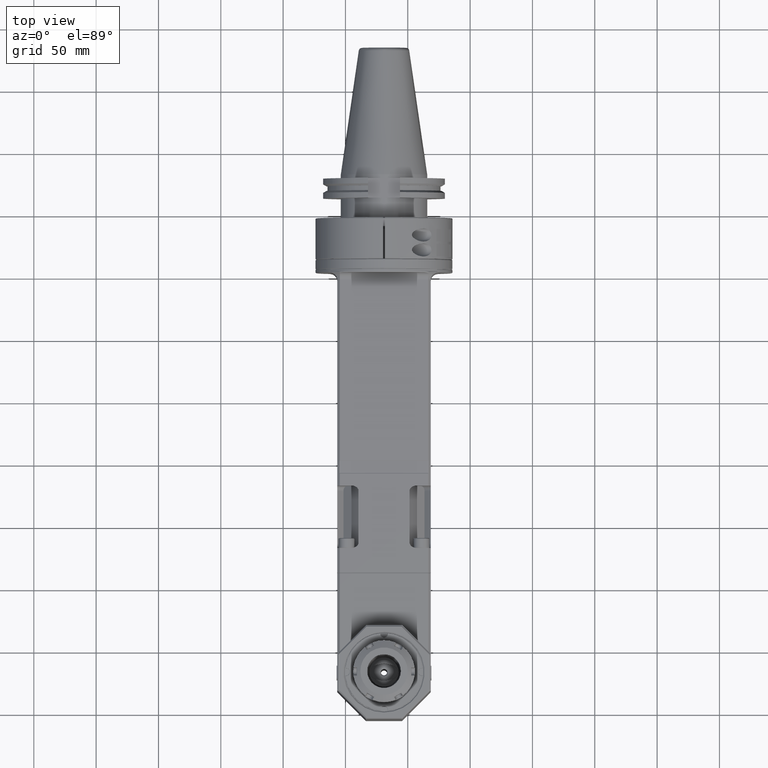
[diagram: clean part render]
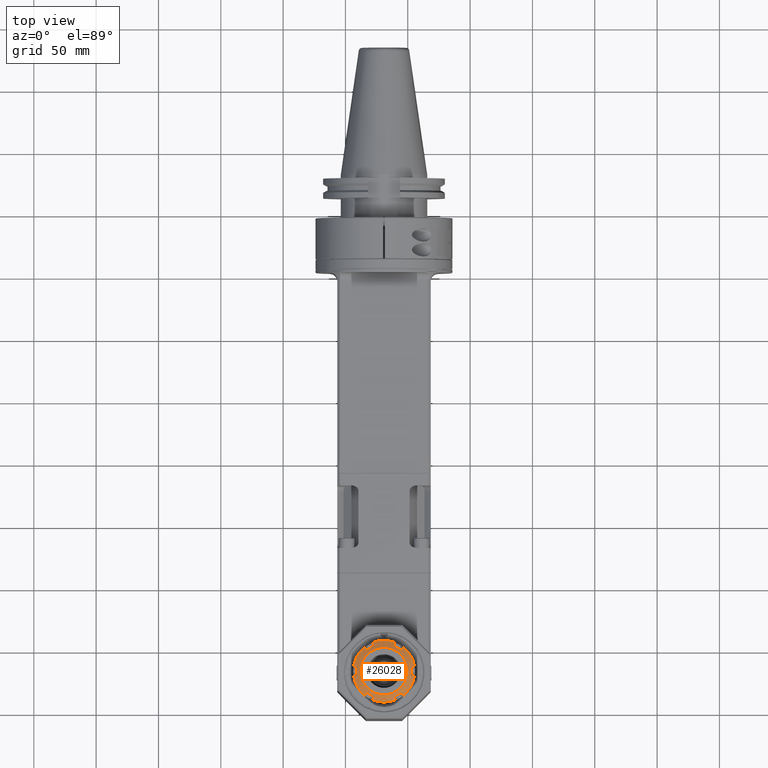
[diagram: same view with one face highlighted and labeled with its STEP entity id]
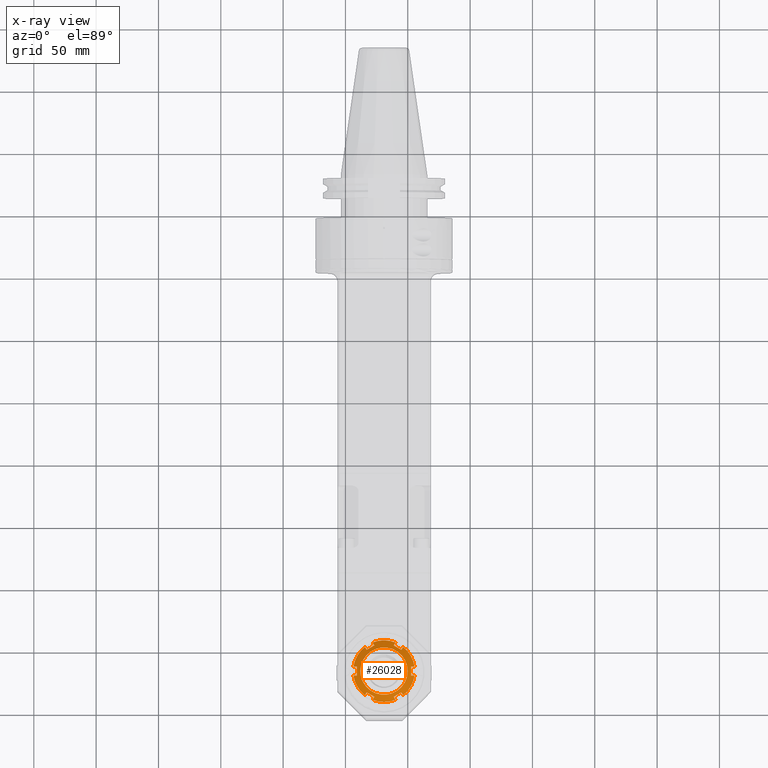
[diagram: x-ray of the same camera — body ghosted, the highlighted face saturated]
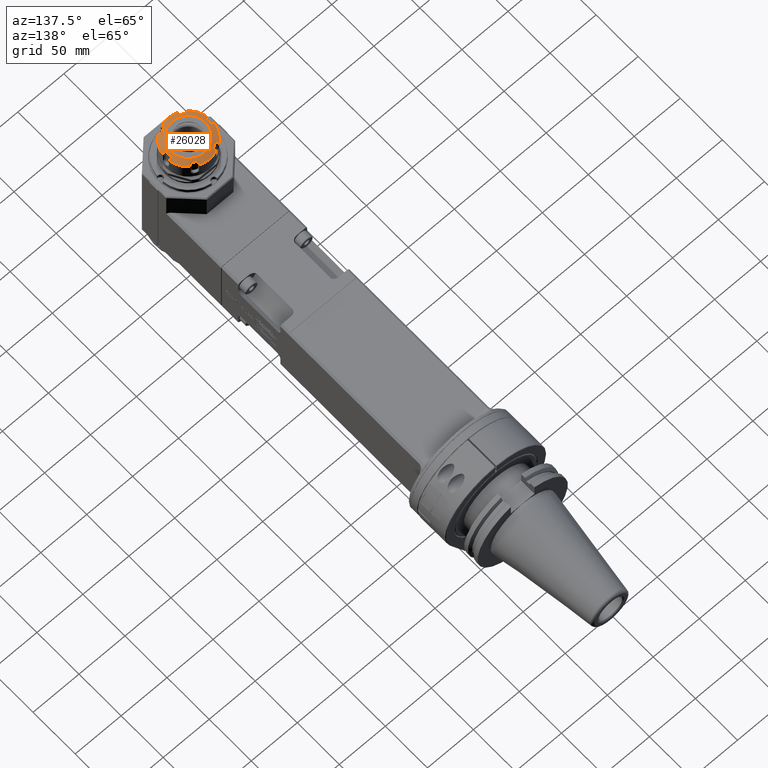
[diagram: same view with one face highlighted and labeled with its STEP entity id]
A machine part, top view. The second image highlights one B-rep face of the part: STEP entity #26028.
The next image is the same camera in x-ray: the body ghosted, the highlighted face saturated — about 0% of this face is hidden behind the body in this view.
A second angle (auxiliary view) of the same face is appended — the face is thin or edge-on in the first view.
In plain terms, the highlighted conical surface has half-angle 60 deg.
Its self-contained STEP definition (entity closure, byte-faithful):
#370=(
BOUNDED_CURVE()
B_SPLINE_CURVE(2,(#48498,#48499,#48500),.UNSPECIFIED.,.F.,.F.)
B_SPLINE_CURVE_WITH_KNOTS((3,3),(-1.82654082025612,-1.82066003770073),
 .UNSPECIFIED.)
CURVE()
GEOMETRIC_REPRESENTATION_ITEM()
RATIONAL_B_SPLINE_CURVE((1.10514898114866,1.10514190550806,1.10513378545429))
REPRESENTATION_ITEM('')
);
#371=(
BOUNDED_CURVE()
B_SPLINE_CURVE(2,(#48525,#48526,#48527),.UNSPECIFIED.,.F.,.F.)
B_SPLINE_CURVE_WITH_KNOTS((3,3),(1.82066009603085,1.82654082049497),
 .UNSPECIFIED.)
CURVE()
GEOMETRIC_REPRESENTATION_ITEM()
RATIONAL_B_SPLINE_CURVE((1.10513378565862,1.10514190562193,1.10514898119271))
REPRESENTATION_ITEM('')
);
#372=(
BOUNDED_CURVE()
B_SPLINE_CURVE(2,(#48529,#48530,#48531),.UNSPECIFIED.,.F.,.F.)
B_SPLINE_CURVE_WITH_KNOTS((3,3),(1.9062225038826,1.91210328642384),
 .UNSPECIFIED.)
CURVE()
GEOMETRIC_REPRESENTATION_ITEM()
RATIONAL_B_SPLINE_CURVE((1.10514898079851,1.10514190515848,1.10513378510529))
REPRESENTATION_ITEM('')
);
#373=(
BOUNDED_CURVE()
B_SPLINE_CURVE(2,(#48555,#48556,#48557),.UNSPECIFIED.,.F.,.F.)
B_SPLINE_CURVE_WITH_KNOTS((3,3),(1.82066003554206,1.82654081594496),
 .UNSPECIFIED.)
CURVE()
GEOMETRIC_REPRESENTATION_ITEM()
RATIONAL_B_SPLINE_CURVE((1.10513378467588,1.10514190472504,1.1051489803618))
REPRESENTATION_ITEM('')
);
#374=(
BOUNDED_CURVE()
B_SPLINE_CURVE(2,(#48559,#48560,#48561),.UNSPECIFIED.,.F.,.F.)
B_SPLINE_CURVE_WITH_KNOTS((3,3),(1.90622249083383,1.91210327337056),
 .UNSPECIFIED.)
CURVE()
GEOMETRIC_REPRESENTATION_ITEM()
RATIONAL_B_SPLINE_CURVE((1.1051489802524,1.10514190461325,1.10513378456093))
REPRESENTATION_ITEM('')
);
#375=(
BOUNDED_CURVE()
B_SPLINE_CURVE(2,(#48587,#48588,#48589),.UNSPECIFIED.,.F.,.F.)
B_SPLINE_CURVE_WITH_KNOTS((3,3),(1.8206600385524,1.82654081896553),
 .UNSPECIFIED.)
CURVE()
GEOMETRIC_REPRESENTATION_ITEM()
RATIONAL_B_SPLINE_CURVE((1.10513378522776,1.10514190527782,1.10514898091548))
REPRESENTATION_ITEM('')
);
#376=(
BOUNDED_CURVE()
B_SPLINE_CURVE(2,(#48618,#48619,#48620),.UNSPECIFIED.,.F.,.F.)
B_SPLINE_CURVE_WITH_KNOTS((3,3),(1.82066004007141,1.82654082049488),
 .UNSPECIFIED.)
CURVE()
GEOMETRIC_REPRESENTATION_ITEM()
RATIONAL_B_SPLINE_CURVE((1.1051337855041,1.10514190555462,1.10514898119273))
REPRESENTATION_ITEM('')
);
#377=(
BOUNDED_CURVE()
B_SPLINE_CURVE(2,(#48622,#48623,#48624),.UNSPECIFIED.,.F.,.F.)
B_SPLINE_CURVE_WITH_KNOTS((3,3),(1.90622250388284,1.91210328642407),
 .UNSPECIFIED.)
CURVE()
GEOMETRIC_REPRESENTATION_ITEM()
RATIONAL_B_SPLINE_CURVE((1.1051489807984,1.10514190515837,1.10513378510518))
REPRESENTATION_ITEM('')
);
#378=(
BOUNDED_CURVE()
B_SPLINE_CURVE(2,(#48648,#48649,#48650),.UNSPECIFIED.,.F.,.F.)
B_SPLINE_CURVE_WITH_KNOTS((3,3),(1.82066003554227,1.82654081594518),
 .UNSPECIFIED.)
CURVE()
GEOMETRIC_REPRESENTATION_ITEM()
RATIONAL_B_SPLINE_CURVE((1.10513378467585,1.10514190472501,1.10514898036177))
REPRESENTATION_ITEM('')
);
#379=(
BOUNDED_CURVE()
B_SPLINE_CURVE(2,(#48652,#48653,#48654),.UNSPECIFIED.,.F.,.F.)
B_SPLINE_CURVE_WITH_KNOTS((3,3),(1.90622249083385,1.91210327337054),
 .UNSPECIFIED.)
CURVE()
GEOMETRIC_REPRESENTATION_ITEM()
RATIONAL_B_SPLINE_CURVE((1.10514898025235,1.10514190461319,1.10513378456088))
REPRESENTATION_ITEM('')
);
#380=(
BOUNDED_CURVE()
B_SPLINE_CURVE(2,(#48680,#48681,#48682),.UNSPECIFIED.,.F.,.F.)
B_SPLINE_CURVE_WITH_KNOTS((3,3),(1.82066001947982,1.82654081896597),
 .UNSPECIFIED.)
CURVE()
GEOMETRIC_REPRESENTATION_ITEM()
RATIONAL_B_SPLINE_CURVE((1.10513378517518,1.10514190525496,1.10514898091556))
REPRESENTATION_ITEM('')
);
#381=(
BOUNDED_CURVE()
B_SPLINE_CURVE(2,(#48684,#48685,#48686),.UNSPECIFIED.,.F.,.F.)
B_SPLINE_CURVE_WITH_KNOTS((3,3),(-1.8265408202562,-1.82066003770081),
 .UNSPECIFIED.)
CURVE()
GEOMETRIC_REPRESENTATION_ITEM()
RATIONAL_B_SPLINE_CURVE((1.10514898114863,1.10514190550803,1.10513378545426))
REPRESENTATION_ITEM('')
);
#1109=B_SPLINE_CURVE_WITH_KNOTS('',3,(#48512,#48513,#48514,#48515,#48516,
#48517),.UNSPECIFIED.,.F.,.F.,(4,2,4),(1.00033050750309E-6,0.177019940716621,
0.354704537623583),.UNSPECIFIED.);
#1110=B_SPLINE_CURVE_WITH_KNOTS('',3,(#48519,#48520,#48521,#48522,#48523,
#48524),.UNSPECIFIED.,.F.,.F.,(4,2,4),(6.5778566744217E-6,0.158649001424634,
0.312349188626442),.UNSPECIFIED.);
#1111=B_SPLINE_CURVE_WITH_KNOTS('',3,(#48533,#48534,#48535,#48536,#48537,
#48538),.UNSPECIFIED.,.F.,.F.,(4,2,4),(9.99999991358948E-7,0.153548747194404,
0.311883058611838),.UNSPECIFIED.);
#1112=B_SPLINE_CURVE_WITH_KNOTS('',3,(#48540,#48541,#48542,#48543,#48544,
#48545,#48546,#48547),.UNSPECIFIED.,.F.,.F.,(4,2,2,4),(3.04413873223102E-6,
0.177740263340995,0.354676786395525,0.710274293113487),.UNSPECIFIED.);
#1113=B_SPLINE_CURVE_WITH_KNOTS('',3,(#48549,#48550,#48551,#48552,#48553,
#48554),.UNSPECIFIED.,.F.,.F.,(4,2,4),(1.32932843272184E-6,0.158570358433305,
0.312342936359742),.UNSPECIFIED.);
#1114=B_SPLINE_CURVE_WITH_KNOTS('',3,(#48563,#48564,#48565,#48566,#48567,
#48568),.UNSPECIFIED.,.F.,.F.,(4,2,4),(9.99999989675926E-7,0.153548725433397,
0.311884353206073),.UNSPECIFIED.);
#1115=B_SPLINE_CURVE_WITH_KNOTS('',3,(#48570,#48571,#48572,#48573,#48574,
#48575,#48576,#48577,#48578,#48579),.UNSPECIFIED.,.F.,.F.,(4,2,2,2,4),(3.43894120761927E-6,
0.179256817107897,0.356213165136703,0.532342427934041,0.709279107657914),
 .UNSPECIFIED.);
#1116=B_SPLINE_CURVE_WITH_KNOTS('',3,(#48581,#48582,#48583,#48584,#48585,
#48586),.UNSPECIFIED.,.F.,.F.,(4,2,4),(2.07933485628875E-6,0.158569246977761,
0.312342355096154),.UNSPECIFIED.);
#1117=B_SPLINE_CURVE_WITH_KNOTS('',3,(#48591,#48592,#48593,#48594,#48595,
#48596),.UNSPECIFIED.,.F.,.F.,(4,2,4),(9.99999986900368E-7,0.153549312260224,
0.311879056020401),.UNSPECIFIED.);
#1118=B_SPLINE_CURVE_WITH_KNOTS('',3,(#48598,#48599,#48600,#48601,#48602,
#48603),.UNSPECIFIED.,.F.,.F.,(4,2,4),(4.05464267821666E-6,0.17766895440524,
0.354666002549029),.UNSPECIFIED.);
#1119=B_SPLINE_CURVE_WITH_KNOTS('',3,(#48605,#48606,#48607,#48608,#48609,
#48610),.UNSPECIFIED.,.F.,.F.,(4,2,4),(1.00033051455172E-6,0.177019946599569,
0.354704559775911),.UNSPECIFIED.);
#1120=B_SPLINE_CURVE_WITH_KNOTS('',3,(#48612,#48613,#48614,#48615,#48616,
#48617),.UNSPECIFIED.,.F.,.F.,(4,2,4),(6.57690684396985E-6,0.158570187214575,
0.312342848772832),.UNSPECIFIED.);
#1121=B_SPLINE_CURVE_WITH_KNOTS('',3,(#48626,#48627,#48628,#48629,#48630,
#48631),.UNSPECIFIED.,.F.,.F.,(4,2,4),(9.99999985695937E-7,0.153548747176546,
0.311883058546277),.UNSPECIFIED.);
#1122=B_SPLINE_CURVE_WITH_KNOTS('',3,(#48633,#48634,#48635,#48636,#48637,
#48638,#48639,#48640),.UNSPECIFIED.,.F.,.F.,(4,2,2,4),(3.04413870792795E-6,
0.177740263341641,0.354676786396924,0.710274293117175),.UNSPECIFIED.);
#1123=B_SPLINE_CURVE_WITH_KNOTS('',3,(#48642,#48643,#48644,#48645,#48646,
#48647),.UNSPECIFIED.,.F.,.F.,(4,2,4),(1.32932839602228E-6,0.158570358433953,
0.312342936336019),.UNSPECIFIED.);
#1124=B_SPLINE_CURVE_WITH_KNOTS('',3,(#48656,#48657,#48658,#48659,#48660,
#48661),.UNSPECIFIED.,.F.,.F.,(4,2,4),(9.99999990970707E-7,0.153548725449949,
0.311884353226229),.UNSPECIFIED.);
#1125=B_SPLINE_CURVE_WITH_KNOTS('',3,(#48663,#48664,#48665,#48666,#48667,
#48668,#48669,#48670,#48671,#48672),.UNSPECIFIED.,.F.,.F.,(4,2,2,2,4),(3.43894121152143E-6,
0.179256816904015,0.356213164735294,0.532342426788511,0.709279115225004),
 .UNSPECIFIED.);
#1126=B_SPLINE_CURVE_WITH_KNOTS('',3,(#48674,#48675,#48676,#48677,#48678,
#48679),.UNSPECIFIED.,.F.,.F.,(4,2,4),(2.07504642756794E-6,0.158542178674182,
0.312340210569757),.UNSPECIFIED.);
#1127=B_SPLINE_CURVE_WITH_KNOTS('',3,(#48688,#48689,#48690,#48691,#48692,
#48693),.UNSPECIFIED.,.F.,.F.,(4,2,4),(9.99999986456279E-7,0.153548804591009,
0.311879056027456),.UNSPECIFIED.);
#1128=B_SPLINE_CURVE_WITH_KNOTS('',3,(#48694,#48695,#48696,#48697,#48698,
#48699),.UNSPECIFIED.,.F.,.F.,(4,2,4),(4.05464271295055E-6,0.177668954405957,
0.354666002550622),.UNSPECIFIED.);
#1355=CONICAL_SURFACE('',#28110,21.875,1.0471975511966);
#2744=LINE('',#48701,#4829);
#4829=VECTOR('',#33270,21.875);
#6971=FACE_OUTER_BOUND('',#8572,.T.);
#8572=EDGE_LOOP('',(#21381,#21382,#21383,#21384,#21385,#21386,#21387,#21388,
#21389,#21390,#21391,#21392,#21393,#21394,#21395,#21396,#21397,#21398,#21399,
#21400,#21401,#21402,#21403,#21404,#21405,#21406,#21407,#21408,#21409,#21410,
#21411,#21412,#21413,#21414,#21415,#21416,#21417,#21418,#21419,#21420,#21421));
#9661=CIRCLE('',#28103,24.75);
#9662=CIRCLE('',#28104,24.75);
#9663=CIRCLE('',#28105,24.75);
#9664=CIRCLE('',#28106,24.75);
#9665=CIRCLE('',#28107,24.75);
#9666=CIRCLE('',#28108,24.75);
#9667=CIRCLE('',#28111,19.);
#11693=VERTEX_POINT('',#48179);
#11694=VERTEX_POINT('',#48181);
#11697=VERTEX_POINT('',#48216);
#11698=VERTEX_POINT('',#48218);
#11701=VERTEX_POINT('',#48247);
#11702=VERTEX_POINT('',#48249);
#11706=VERTEX_POINT('',#48284);
#11707=VERTEX_POINT('',#48286);
#11710=VERTEX_POINT('',#48321);
#11711=VERTEX_POINT('',#48323);
#11714=VERTEX_POINT('',#48352);
#11715=VERTEX_POINT('',#48354);
#11720=VERTEX_POINT('',#48497);
#11722=VERTEX_POINT('',#48510);
#11723=VERTEX_POINT('',#48511);
#11724=VERTEX_POINT('',#48518);
#11725=VERTEX_POINT('',#48528);
#11726=VERTEX_POINT('',#48532);
#11727=VERTEX_POINT('',#48539);
#11728=VERTEX_POINT('',#48548);
#11729=VERTEX_POINT('',#48558);
#11730=VERTEX_POINT('',#48562);
#11731=VERTEX_POINT('',#48569);
#11732=VERTEX_POINT('',#48580);
#11733=VERTEX_POINT('',#48590);
#11734=VERTEX_POINT('',#48597);
#11735=VERTEX_POINT('',#48604);
#11736=VERTEX_POINT('',#48611);
#11737=VERTEX_POINT('',#48621);
#11738=VERTEX_POINT('',#48625);
#11739=VERTEX_POINT('',#48632);
#11740=VERTEX_POINT('',#48641);
#11741=VERTEX_POINT('',#48651);
#11742=VERTEX_POINT('',#48655);
#11743=VERTEX_POINT('',#48662);
#11744=VERTEX_POINT('',#48673);
#11745=VERTEX_POINT('',#48683);
#11746=VERTEX_POINT('',#48687);
#11747=VERTEX_POINT('',#48700);
#15081=EDGE_CURVE('',#11693,#11694,#9661,.T.);
#15085=EDGE_CURVE('',#11697,#11698,#9662,.T.);
#15089=EDGE_CURVE('',#11701,#11702,#9663,.T.);
#15095=EDGE_CURVE('',#11707,#11706,#9664,.T.);
#15099=EDGE_CURVE('',#11711,#11710,#9665,.T.);
#15103=EDGE_CURVE('',#11715,#11714,#9666,.T.);
#15111=EDGE_CURVE('',#11706,#11720,#370,.T.);
#15114=EDGE_CURVE('',#11722,#11723,#1109,.T.);
#15115=EDGE_CURVE('',#11723,#11724,#1110,.T.);
#15116=EDGE_CURVE('',#11724,#11715,#371,.T.);
#15117=EDGE_CURVE('',#11714,#11725,#372,.T.);
#15118=EDGE_CURVE('',#11725,#11726,#1111,.T.);
#15119=EDGE_CURVE('',#11726,#11727,#1112,.T.);
#15120=EDGE_CURVE('',#11727,#11728,#1113,.T.);
#15121=EDGE_CURVE('',#11728,#11711,#373,.T.);
#15122=EDGE_CURVE('',#11710,#11729,#374,.T.);
#15123=EDGE_CURVE('',#11729,#11730,#1114,.T.);
#15124=EDGE_CURVE('',#11730,#11731,#1115,.T.);
#15125=EDGE_CURVE('',#11731,#11732,#1116,.T.);
#15126=EDGE_CURVE('',#11732,#11707,#375,.T.);
#15127=EDGE_CURVE('',#11720,#11733,#1117,.T.);
#15128=EDGE_CURVE('',#11733,#11734,#1118,.T.);
#15129=EDGE_CURVE('',#11734,#11735,#1119,.T.);
#15130=EDGE_CURVE('',#11735,#11736,#1120,.T.);
#15131=EDGE_CURVE('',#11736,#11702,#376,.T.);
#15132=EDGE_CURVE('',#11701,#11737,#377,.T.);
#15133=EDGE_CURVE('',#11737,#11738,#1121,.T.);
#15134=EDGE_CURVE('',#11738,#11739,#1122,.T.);
#15135=EDGE_CURVE('',#11739,#11740,#1123,.T.);
#15136=EDGE_CURVE('',#11740,#11698,#378,.T.);
#15137=EDGE_CURVE('',#11697,#11741,#379,.T.);
#15138=EDGE_CURVE('',#11741,#11742,#1124,.T.);
#15139=EDGE_CURVE('',#11742,#11743,#1125,.T.);
#15140=EDGE_CURVE('',#11743,#11744,#1126,.T.);
#15141=EDGE_CURVE('',#11744,#11694,#380,.T.);
#15142=EDGE_CURVE('',#11693,#11745,#381,.T.);
#15143=EDGE_CURVE('',#11745,#11746,#1127,.T.);
#15144=EDGE_CURVE('',#11746,#11722,#1128,.T.);
#15145=EDGE_CURVE('',#11722,#11747,#2744,.T.);
#15146=EDGE_CURVE('',#11747,#11747,#9667,.T.);
#21381=ORIENTED_EDGE('',*,*,#15114,.T.);
#21382=ORIENTED_EDGE('',*,*,#15115,.T.);
#21383=ORIENTED_EDGE('',*,*,#15116,.T.);
#21384=ORIENTED_EDGE('',*,*,#15103,.T.);
#21385=ORIENTED_EDGE('',*,*,#15117,.T.);
#21386=ORIENTED_EDGE('',*,*,#15118,.T.);
#21387=ORIENTED_EDGE('',*,*,#15119,.T.);
#21388=ORIENTED_EDGE('',*,*,#15120,.T.);
#21389=ORIENTED_EDGE('',*,*,#15121,.T.);
#21390=ORIENTED_EDGE('',*,*,#15099,.T.);
#21391=ORIENTED_EDGE('',*,*,#15122,.T.);
#21392=ORIENTED_EDGE('',*,*,#15123,.T.);
#21393=ORIENTED_EDGE('',*,*,#15124,.T.);
#21394=ORIENTED_EDGE('',*,*,#15125,.T.);
#21395=ORIENTED_EDGE('',*,*,#15126,.T.);
#21396=ORIENTED_EDGE('',*,*,#15095,.T.);
#21397=ORIENTED_EDGE('',*,*,#15111,.T.);
#21398=ORIENTED_EDGE('',*,*,#15127,.T.);
#21399=ORIENTED_EDGE('',*,*,#15128,.T.);
#21400=ORIENTED_EDGE('',*,*,#15129,.T.);
#21401=ORIENTED_EDGE('',*,*,#15130,.T.);
#21402=ORIENTED_EDGE('',*,*,#15131,.T.);
#21403=ORIENTED_EDGE('',*,*,#15089,.F.);
#21404=ORIENTED_EDGE('',*,*,#15132,.T.);
#21405=ORIENTED_EDGE('',*,*,#15133,.T.);
#21406=ORIENTED_EDGE('',*,*,#15134,.T.);
#21407=ORIENTED_EDGE('',*,*,#15135,.T.);
#21408=ORIENTED_EDGE('',*,*,#15136,.T.);
#21409=ORIENTED_EDGE('',*,*,#15085,.F.);
#21410=ORIENTED_EDGE('',*,*,#15137,.T.);
#21411=ORIENTED_EDGE('',*,*,#15138,.T.);
#21412=ORIENTED_EDGE('',*,*,#15139,.T.);
#21413=ORIENTED_EDGE('',*,*,#15140,.T.);
#21414=ORIENTED_EDGE('',*,*,#15141,.T.);
#21415=ORIENTED_EDGE('',*,*,#15081,.F.);
#21416=ORIENTED_EDGE('',*,*,#15142,.T.);
#21417=ORIENTED_EDGE('',*,*,#15143,.T.);
#21418=ORIENTED_EDGE('',*,*,#15144,.T.);
#21419=ORIENTED_EDGE('',*,*,#15145,.T.);
#21420=ORIENTED_EDGE('',*,*,#15146,.F.);
#21421=ORIENTED_EDGE('',*,*,#15145,.F.);
#26028=ADVANCED_FACE('',(#6971),#1355,.T.);
#28103=AXIS2_PLACEMENT_3D('',#48182,#33238,#33239);
#28104=AXIS2_PLACEMENT_3D('',#48219,#33242,#33243);
#28105=AXIS2_PLACEMENT_3D('',#48250,#33246,#33247);
#28106=AXIS2_PLACEMENT_3D('',#48287,#33251,#33252);
#28107=AXIS2_PLACEMENT_3D('',#48324,#33255,#33256);
#28108=AXIS2_PLACEMENT_3D('',#48355,#33259,#33260);
#28110=AXIS2_PLACEMENT_3D('',#48509,#33268,#33269);
#28111=AXIS2_PLACEMENT_3D('',#48702,#33271,#33272);
#33238=DIRECTION('center_axis',(0.,0.,-1.));
#33239=DIRECTION('ref_axis',(-0.989529626064201,0.1443298969072,0.));
#33242=DIRECTION('center_axis',(0.,0.,-1.));
#33243=DIRECTION('ref_axis',(-0.369771455784902,0.929122742422504,0.));
#33246=DIRECTION('center_axis',(0.,0.,-1.));
#33247=DIRECTION('ref_axis',(0.619758170279316,0.784792845515321,0.));
#33251=DIRECTION('center_axis',(0.,0.,1.));
#33252=DIRECTION('ref_axis',(0.619758170279316,-0.784792845515321,0.));
#33255=DIRECTION('center_axis',(0.,0.,1.));
#33256=DIRECTION('ref_axis',(-0.369771455784902,-0.929122742422504,0.));
#33259=DIRECTION('center_axis',(0.,0.,1.));
#33260=DIRECTION('ref_axis',(-0.989529626064201,-0.1443298969072,0.));
#33268=DIRECTION('center_axis',(0.,0.,-1.));
#33269=DIRECTION('ref_axis',(1.,0.,0.));
#33270=DIRECTION('',(0.866025403784439,-1.06057523872491E-16,0.5));
#33271=DIRECTION('center_axis',(0.,0.,1.));
#33272=DIRECTION('ref_axis',(-1.,0.,0.));
#48179=CARTESIAN_POINT('',(-24.49085824509,-328.4278350515,100.1802359522));
#48181=CARTESIAN_POINT('',(-15.33901471441,-312.5763770735,100.1802359522));
#48182=CARTESIAN_POINT('Origin',(1.309955564164E-13,-332.,100.1802359522));
#48216=CARTESIAN_POINT('',(-9.151843530675,-309.004212125,100.1802359522));
#48218=CARTESIAN_POINT('',(9.151843530675,-309.004212125,100.1802359522));
#48219=CARTESIAN_POINT('Origin',(1.309955564164E-13,-332.,100.1802359522));
#48247=CARTESIAN_POINT('',(15.33901471441,-312.5763770735,100.1802359522));
#48249=CARTESIAN_POINT('',(24.49085824509,-328.4278350515,100.1802359522));
#48250=CARTESIAN_POINT('Origin',(1.309955564164E-13,-332.,100.1802359522));
#48284=CARTESIAN_POINT('',(24.49085824509,-335.5721649485,100.1802359522));
#48286=CARTESIAN_POINT('',(15.33901471441,-351.4236229265,100.1802359522));
#48287=CARTESIAN_POINT('Origin',(1.309955564164E-13,-332.,100.1802359522));
#48321=CARTESIAN_POINT('',(9.151843530675,-354.995787875,100.1802359522));
#48323=CARTESIAN_POINT('',(-9.151843530675,-354.995787875,100.1802359522));
#48324=CARTESIAN_POINT('Origin',(1.309955564164E-13,-332.,100.1802359522));
#48352=CARTESIAN_POINT('',(-15.33901471441,-351.4236229265,100.1802359522));
#48354=CARTESIAN_POINT('',(-24.49085824509,-335.5721649485,100.1802359522));
#48355=CARTESIAN_POINT('Origin',(1.309955564164E-13,-332.,100.1802359522));
#48497=CARTESIAN_POINT('',(24.4594052314,-335.5357914807,100.2012246278));
#48498=CARTESIAN_POINT('Ctrl Pts',(24.4908582450971,-335.572164948478,100.180235952173));
#48499=CARTESIAN_POINT('Ctrl Pts',(24.4751201799998,-335.553964848213,100.190743784961));
#48500=CARTESIAN_POINT('Ctrl Pts',(24.4594052313875,-335.535791480734,100.20122462784));
#48509=CARTESIAN_POINT('Origin',(1.333912474299E-13,-332.,101.8401179761));
#48510=CARTESIAN_POINT('',(-21.7499808090266,-331.999999999757,101.91229348921));
#48511=CARTESIAN_POINT('',(-21.7467883487198,-335.540152052563,101.748865306802));
#48512=CARTESIAN_POINT('Ctrl Pts',(-21.7499691532631,-331.999999998814,
101.91230456912));
#48513=CARTESIAN_POINT('Ctrl Pts',(-21.7498843188799,-332.590063114272,
101.912353548293));
#48514=CARTESIAN_POINT('Ctrl Pts',(-21.7496381453091,-333.179151326333,
101.898630296402));
#48515=CARTESIAN_POINT('Ctrl Pts',(-21.7486241347857,-334.360174166036,
101.843949712118));
#48516=CARTESIAN_POINT('Ctrl Pts',(-21.7478499128928,-334.950417064916,
101.802967447971));
#48517=CARTESIAN_POINT('Ctrl Pts',(-21.7467883497789,-335.540152052468,
101.748865305749));
#48518=CARTESIAN_POINT('',(-24.45940554186,-335.5357918398,100.2012244208));
#48519=CARTESIAN_POINT('Ctrl Pts',(-21.7467883485518,-335.54015205181,101.748865306509));
#48520=CARTESIAN_POINT('Ctrl Pts',(-22.2062689713931,-335.539314281344,
101.487108445731));
#48521=CARTESIAN_POINT('Ctrl Pts',(-22.6658663388508,-335.538539699259,
101.225060788196));
#48522=CARTESIAN_POINT('Ctrl Pts',(-23.5700194846934,-335.537105917963,
100.709176497805));
#48523=CARTESIAN_POINT('Ctrl Pts',(-24.0152268369934,-335.53644286095,100.454979147629));
#48524=CARTESIAN_POINT('Ctrl Pts',(-24.4594055418501,-335.535791839753,
100.201224420783));
#48525=CARTESIAN_POINT('Ctrl Pts',(-24.4594055418548,-335.535791839791,
100.201224420777));
#48526=CARTESIAN_POINT('Ctrl Pts',(-24.4751203354571,-335.55396502801,100.190743681165));
#48527=CARTESIAN_POINT('Ctrl Pts',(-24.4908582450879,-335.572164948489,
100.180235952177));
#48528=CARTESIAN_POINT('',(-15.2917878605,-351.4145705515,100.2012246278));
#48529=CARTESIAN_POINT('Ctrl Pts',(-15.3390147144066,-351.42362292649,100.180235952188));
#48530=CARTESIAN_POINT('Ctrl Pts',(-15.3153839327048,-351.419093412448,
100.190743784963));
#48531=CARTESIAN_POINT('Ctrl Pts',(-15.2917878605182,-351.414570551476,
100.20122462783));
#48532=CARTESIAN_POINT('',(-13.9392386496319,-349.063164756013,101.748885148542));
#48533=CARTESIAN_POINT('Ctrl Pts',(-15.2917878605645,-351.414570551473,
100.201224627815));
#48534=CARTESIAN_POINT('Ctrl Pts',(-15.0701440261038,-351.029369877775,
100.455114644268));
#48535=CARTESIAN_POINT('Ctrl Pts',(-14.848000086099,-350.643277943395,100.7094432355));
#48536=CARTESIAN_POINT('Ctrl Pts',(-14.3971707220579,-349.85955000513,101.225321331072));
#48537=CARTESIAN_POINT('Ctrl Pts',(-14.1681432367903,-349.461313850265,
101.487254253987));
#48538=CARTESIAN_POINT('Ctrl Pts',(-13.9392386489504,-349.063164756227,
101.748885148271));
#48539=CARTESIAN_POINT('',(-7.80750911433231,-352.603307178742,101.748891703209));
#48540=CARTESIAN_POINT('Ctrl Pts',(-13.9392386500464,-349.063164756907,
101.748885147567));
#48541=CARTESIAN_POINT('Ctrl Pts',(-13.4288340963575,-349.359076253886,
101.803008293175));
#48542=CARTESIAN_POINT('Ctrl Pts',(-12.9179057249731,-349.654995194555,
101.843978615322));
#48543=CARTESIAN_POINT('Ctrl Pts',(-11.8956709105711,-350.246442529612,
101.89859366998));
#48544=CARTESIAN_POINT('Ctrl Pts',(-11.3864658609649,-350.540794251318,
101.912249632253));
#48545=CARTESIAN_POINT('Ctrl Pts',(-9.85026829471907,-351.427740132925,
101.912295231412));
#48546=CARTESIAN_POINT('Ctrl Pts',(-8.83152617246465,-352.014497099158,
101.8572817505));
#48547=CARTESIAN_POINT('Ctrl Pts',(-7.80750911371054,-352.603307177858,
101.748891704279));
#48548=CARTESIAN_POINT('',(-9.167617365192,-354.9503620487,100.2012246202));
#48549=CARTESIAN_POINT('Ctrl Pts',(-7.80750911375496,-352.603307179273,
101.748891703506));
#48550=CARTESIAN_POINT('Ctrl Pts',(-8.0378675300578,-353.000625036429,101.487256795526));
#48551=CARTESIAN_POINT('Ctrl Pts',(-8.26823968407483,-353.39809254496,101.225320063484));
#48552=CARTESIAN_POINT('Ctrl Pts',(-8.72155510405971,-354.180389448785,
100.709439837338));
#48553=CARTESIAN_POINT('Ctrl Pts',(-8.94484831851875,-354.565817284243,
100.455111524672));
#48554=CARTESIAN_POINT('Ctrl Pts',(-9.16761736522865,-354.950362048689,
100.201224620216));
#48555=CARTESIAN_POINT('Ctrl Pts',(-9.16761736518064,-354.950362048705,
100.201224620218));
#48556=CARTESIAN_POINT('Ctrl Pts',(-9.15973624443708,-354.973058268928,
100.190743781137));
#48557=CARTESIAN_POINT('Ctrl Pts',(-9.15184353067163,-354.995787874983,
100.180235952167));
#48558=CARTESIAN_POINT('',(9.1676173709,-354.9503620322,100.2012246278));
#48559=CARTESIAN_POINT('Ctrl Pts',(9.15184353065261,-354.99578787498,100.180235952173));
#48560=CARTESIAN_POINT('Ctrl Pts',(9.1597362472849,-354.973058260668,100.19074378496));
#48561=CARTESIAN_POINT('Ctrl Pts',(9.16761737088687,-354.950362032213,100.201224627838));
#48562=CARTESIAN_POINT('',(7.80750918199172,-352.603307425937,101.748891555927));
#48563=CARTESIAN_POINT('Ctrl Pts',(9.16761737085576,-354.950362032244,100.201224627828));
#48564=CARTESIAN_POINT('Ctrl Pts',(8.94484575065773,-354.565812558671,100.455114608298));
#48565=CARTESIAN_POINT('Ctrl Pts',(8.72155232777174,-354.180384348704,100.70944316486));
#48566=CARTESIAN_POINT('Ctrl Pts',(8.26823682169214,-353.398087446401,101.225323404464));
#48567=CARTESIAN_POINT('Ctrl Pts',(8.03786602827465,-353.000622455379,101.487258496293));
#48568=CARTESIAN_POINT('Ctrl Pts',(7.80750918143673,-352.603307426447,101.748891556213));
#48569=CARTESIAN_POINT('',(13.9392386272624,-349.06316484832,101.748885115447));
#48570=CARTESIAN_POINT('Ctrl Pts',(7.807509181394,-352.603307425087,101.748891556956));
#48571=CARTESIAN_POINT('Ctrl Pts',(8.32332850835943,-352.306711558073,101.803489739118));
#48572=CARTESIAN_POINT('Ctrl Pts',(8.8389795477757,-352.009927468879,101.844670619681));
#48573=CARTESIAN_POINT('Ctrl Pts',(9.86680529848839,-351.417831291293,101.899041518989));
#48574=CARTESIAN_POINT('Ctrl Pts',(10.3771123938342,-351.123564139912,101.912489025669));
#48575=CARTESIAN_POINT('Ctrl Pts',(11.3963400700405,-350.535087520421,101.912036252142));
#48576=CARTESIAN_POINT('Ctrl Pts',(11.9035616973107,-350.241879297636,101.898275512951));
#48577=CARTESIAN_POINT('Ctrl Pts',(12.9218291333137,-349.65272306623,101.843663811363));
#48578=CARTESIAN_POINT('Ctrl Pts',(13.4307949390711,-349.357939612796,101.802800286785));
#48579=CARTESIAN_POINT('Ctrl Pts',(13.9392386276832,-349.063164849227,101.748885114457));
#48580=CARTESIAN_POINT('',(15.29178787759,-351.4145705548,100.2012246202));
#48581=CARTESIAN_POINT('Ctrl Pts',(13.9392386265702,-349.063164848537,101.748885115172));
#48582=CARTESIAN_POINT('Ctrl Pts',(14.1681448240444,-349.461316620221,101.48725243557));
#48583=CARTESIAN_POINT('Ctrl Pts',(14.3971737495934,-349.859555108502,101.225317940596));
#48584=CARTESIAN_POINT('Ctrl Pts',(14.8480045576964,-350.643285406192,100.709438256846));
#48585=CARTESIAN_POINT('Ctrl Pts',(15.0701453974211,-351.029371966541,100.45511320699));
#48586=CARTESIAN_POINT('Ctrl Pts',(15.2917878775777,-351.41457055482,100.201224620219));
#48587=CARTESIAN_POINT('Ctrl Pts',(15.2917878776271,-351.414570554717,100.201224620248));
#48588=CARTESIAN_POINT('Ctrl Pts',(15.3153839412778,-351.419093414054,100.190743781168));
#48589=CARTESIAN_POINT('Ctrl Pts',(15.3390147144186,-351.423622926455,100.1802359522));
#48590=CARTESIAN_POINT('',(21.7467883116766,-335.540152338497,101.748865301385));
#48591=CARTESIAN_POINT('Ctrl Pts',(24.4594052314138,-335.535791480749,100.201224627824));
#48592=CARTESIAN_POINT('Ctrl Pts',(24.0149866972508,-335.536442630905,100.455116385536));
#48593=CARTESIAN_POINT('Ctrl Pts',(23.5695549122634,-335.537106294172,100.709441774731));
#48594=CARTESIAN_POINT('Ctrl Pts',(22.6654206210709,-335.538540567528,101.225314908903));
#48595=CARTESIAN_POINT('Ctrl Pts',(22.2060360582774,-335.539315003473,101.487241104614));
#48596=CARTESIAN_POINT('Ctrl Pts',(21.746788311509,-335.540152337746,101.748865301093));
#48597=CARTESIAN_POINT('',(21.7499773944747,-331.999999999365,101.912296910753));
#48598=CARTESIAN_POINT('Ctrl Pts',(21.7467883127329,-335.540152338402,101.748865300335));
#48599=CARTESIAN_POINT('Ctrl Pts',(21.7478496279381,-334.95041347737,101.802967947549));
#48600=CARTESIAN_POINT('Ctrl Pts',(21.74862352475,-334.360166871518,101.84395057848));
#48601=CARTESIAN_POINT('Ctrl Pts',(21.7496377384096,-333.179143734191,101.898630712485));
#48602=CARTESIAN_POINT('Ctrl Pts',(21.749884446748,-332.590059471359,101.912353474485));
#48603=CARTESIAN_POINT('Ctrl Pts',(21.7499705653701,-331.999999997792,101.91230375384));
#48604=CARTESIAN_POINT('',(21.7467883483242,-328.459847726967,101.748865286575));
#48605=CARTESIAN_POINT('Ctrl Pts',(21.749969153263,-332.000000001186,101.912304569121));
#48606=CARTESIAN_POINT('Ctrl Pts',(21.749884318877,-331.409936866118,101.912353548295));
#48607=CARTESIAN_POINT('Ctrl Pts',(21.7496381452924,-330.820848634541,101.89863029549));
#48608=CARTESIAN_POINT('Ctrl Pts',(21.7486241346717,-329.639825721173,101.843949705993));
#48609=CARTESIAN_POINT('Ctrl Pts',(21.7478499126619,-329.049582768432,101.802967435964));
#48610=CARTESIAN_POINT('Ctrl Pts',(21.7467883493819,-328.459847727062,101.748865285523));
#48611=CARTESIAN_POINT('',(24.45940524278,-328.4642085061,100.2012246202));
#48612=CARTESIAN_POINT('Ctrl Pts',(21.7467883481564,-328.459847727719,101.748865286282));
#48613=CARTESIAN_POINT('Ctrl Pts',(22.206039228323,-328.460685006862,101.487239298988));
#48614=CARTESIAN_POINT('Ctrl Pts',(22.6654265562078,-328.4614593622,101.22531151744));
#48615=CARTESIAN_POINT('Ctrl Pts',(23.569557804763,-328.462893555518,100.709440108973));
#48616=CARTESIAN_POINT('Ctrl Pts',(24.01499494653,-328.463557234394,100.455111660666));
#48617=CARTESIAN_POINT('Ctrl Pts',(24.4594052427995,-328.464208506127,100.201224620234));
#48618=CARTESIAN_POINT('Ctrl Pts',(24.4594052427774,-328.464208506073,100.201224620242));
#48619=CARTESIAN_POINT('Ctrl Pts',(24.4751201856985,-328.446035145176,100.190743781154));
#48620=CARTESIAN_POINT('Ctrl Pts',(24.490858245088,-328.427835051511,100.180235952178));
#48621=CARTESIAN_POINT('',(15.2917878605,-312.5854294485,100.2012246278));
#48622=CARTESIAN_POINT('Ctrl Pts',(15.3390147144072,-312.576377073511,100.180235952189));
#48623=CARTESIAN_POINT('Ctrl Pts',(15.3153839327053,-312.580906587553,100.190743784964));
#48624=CARTESIAN_POINT('Ctrl Pts',(15.2917878605187,-312.585429448526,100.201224627831));
#48625=CARTESIAN_POINT('',(13.939238649632,-314.936835243987,101.748885148542));
#48626=CARTESIAN_POINT('Ctrl Pts',(15.2917878605646,-312.585429448527,100.201224627815));
#48627=CARTESIAN_POINT('Ctrl Pts',(15.0701440261297,-312.97063012218,100.455114644238));
#48628=CARTESIAN_POINT('Ctrl Pts',(14.8480000861105,-313.356722056585,100.709443235487));
#48629=CARTESIAN_POINT('Ctrl Pts',(14.3971707220887,-314.140449994817,101.225321331037));
#48630=CARTESIAN_POINT('Ctrl Pts',(14.1681432367958,-314.538686149726,101.48725425398));
#48631=CARTESIAN_POINT('Ctrl Pts',(13.9392386489504,-314.936835243773,101.748885148271));
#48632=CARTESIAN_POINT('',(7.80750911433309,-311.396692821258,101.748891703209));
#48633=CARTESIAN_POINT('Ctrl Pts',(13.9392386500465,-314.936835243093,101.748885147567));
#48634=CARTESIAN_POINT('Ctrl Pts',(13.4288340963557,-314.640923746113,101.803008293175));
#48635=CARTESIAN_POINT('Ctrl Pts',(12.9179057249722,-314.345004805444,101.843978615322));
#48636=CARTESIAN_POINT('Ctrl Pts',(11.8956709105717,-313.753557470388,101.89859366998));
#48637=CARTESIAN_POINT('Ctrl Pts',(11.3864658609651,-313.459205748682,101.912249632253));
#48638=CARTESIAN_POINT('Ctrl Pts',(9.85026829471666,-312.572259867074,101.912295231412));
#48639=CARTESIAN_POINT('Ctrl Pts',(8.83152617246355,-311.98550290084,101.8572817505));
#48640=CARTESIAN_POINT('Ctrl Pts',(7.80750911371126,-311.396692822143,101.748891704279));
#48641=CARTESIAN_POINT('',(9.167617365192,-309.0496379513,100.2012246202));
#48642=CARTESIAN_POINT('Ctrl Pts',(7.80750911375573,-311.396692820728,101.748891703506));
#48643=CARTESIAN_POINT('Ctrl Pts',(8.03786753005861,-310.999374963569,101.487256795525));
#48644=CARTESIAN_POINT('Ctrl Pts',(8.26823968404596,-310.60190745509,101.225320063516));
#48645=CARTESIAN_POINT('Ctrl Pts',(8.72155510405141,-309.81961055123,100.709439837348));
#48646=CARTESIAN_POINT('Ctrl Pts',(8.94484831849656,-309.434182715795,100.455111524698));
#48647=CARTESIAN_POINT('Ctrl Pts',(9.16761736522948,-309.049637951311,100.201224620216));
#48648=CARTESIAN_POINT('Ctrl Pts',(9.16761736518159,-309.049637951295,100.201224620218));
#48649=CARTESIAN_POINT('Ctrl Pts',(9.15973624443803,-309.026941731072,100.190743781137));
#48650=CARTESIAN_POINT('Ctrl Pts',(9.15184353067257,-309.004212125016,100.180235952166));
#48651=CARTESIAN_POINT('',(-9.167617370899,-309.0496379678,100.2012246278));
#48652=CARTESIAN_POINT('Ctrl Pts',(-9.15184353065265,-309.00421212502,100.180235952173));
#48653=CARTESIAN_POINT('Ctrl Pts',(-9.15973624728489,-309.026941739332,
100.190743784959));
#48654=CARTESIAN_POINT('Ctrl Pts',(-9.16761737088682,-309.049637967787,
100.201224627838));
#48655=CARTESIAN_POINT('',(-7.8075091819918,-311.396692574063,101.748891555927));
#48656=CARTESIAN_POINT('Ctrl Pts',(-9.16761737085559,-309.049637967756,
100.201224627828));
#48657=CARTESIAN_POINT('Ctrl Pts',(-8.94484575063352,-309.434187441371,
100.455114608325));
#48658=CARTESIAN_POINT('Ctrl Pts',(-8.7215523277619,-309.819615651313,100.709443164871));
#48659=CARTESIAN_POINT('Ctrl Pts',(-8.26823682172155,-310.601912553548,
101.225323404431));
#48660=CARTESIAN_POINT('Ctrl Pts',(-8.03786602828537,-310.999377544602,
101.487258496281));
#48661=CARTESIAN_POINT('Ctrl Pts',(-7.8075091814368,-311.396692573553,101.748891556213));
#48662=CARTESIAN_POINT('',(-13.9392386924622,-314.936835189477,101.74888510853));
#48663=CARTESIAN_POINT('Ctrl Pts',(-7.80750918139403,-311.396692574913,
101.748891556956));
#48664=CARTESIAN_POINT('Ctrl Pts',(-8.32332850777283,-311.693288441589,
101.803489739056));
#48665=CARTESIAN_POINT('Ctrl Pts',(-8.83897954660163,-311.990072530446,
101.844670619587));
#48666=CARTESIAN_POINT('Ctrl Pts',(-9.86680529614904,-312.58216870736,101.899041518897));
#48667=CARTESIAN_POINT('Ctrl Pts',(-10.3771123909143,-312.876435858404,
101.912489025608));
#48668=CARTESIAN_POINT('Ctrl Pts',(-11.3963400643838,-313.464912476312,
101.912036252207));
#48669=CARTESIAN_POINT('Ctrl Pts',(-11.9035616895151,-313.758120697857,
101.898275513193));
#48670=CARTESIAN_POINT('Ctrl Pts',(-12.9218291485066,-314.347276942557,
101.843663810724));
#48671=CARTESIAN_POINT('Ctrl Pts',(-13.4307949792691,-314.642060410484,
101.802800283643));
#48672=CARTESIAN_POINT('Ctrl Pts',(-13.9392386928817,-314.936835188573,
101.748885107543));
#48673=CARTESIAN_POINT('',(-15.29178772455,-312.5854294746,100.2012246882));
#48674=CARTESIAN_POINT('Ctrl Pts',(-13.9392386917723,-314.93683518926,101.748885108256));
#48675=CARTESIAN_POINT('Ctrl Pts',(-14.1681058406261,-314.538751386372,
101.48729708204));
#48676=CARTESIAN_POINT('Ctrl Pts',(-14.3970989832109,-314.140575030456,
101.225403508244));
#48677=CARTESIAN_POINT('Ctrl Pts',(-14.847926461041,-313.356850216583,100.709527616674));
#48678=CARTESIAN_POINT('Ctrl Pts',(-15.0701053763836,-312.970697289285,
100.455158915635));
#48679=CARTESIAN_POINT('Ctrl Pts',(-15.2917877245239,-312.585429474568,
100.201224688225));
#48680=CARTESIAN_POINT('Ctrl Pts',(-15.2917877245687,-312.585429474621,
100.201224688233));
#48681=CARTESIAN_POINT('Ctrl Pts',(-15.3153838646361,-312.580906600637,
100.190743815248));
#48682=CARTESIAN_POINT('Ctrl Pts',(-15.3390147144186,-312.576377073545,
100.1802359522));
#48683=CARTESIAN_POINT('',(-24.4594052314,-328.4642085193,100.2012246278));
#48684=CARTESIAN_POINT('Ctrl Pts',(-24.4908582450971,-328.427835051522,
100.180235952173));
#48685=CARTESIAN_POINT('Ctrl Pts',(-24.4751201799998,-328.446035151787,
100.190743784961));
#48686=CARTESIAN_POINT('Ctrl Pts',(-24.4594052313875,-328.464208519266,
100.20122462784));
#48687=CARTESIAN_POINT('',(-21.7467883116767,-328.459847661504,101.748865301385));
#48688=CARTESIAN_POINT('Ctrl Pts',(-24.4594052314138,-328.464208519251,
100.201224627824));
#48689=CARTESIAN_POINT('Ctrl Pts',(-24.0149895790797,-328.463557373318,
100.455114739177));
#48690=CARTESIAN_POINT('Ctrl Pts',(-23.5695520132783,-328.46289370123,100.709443428809));
#48691=CARTESIAN_POINT('Ctrl Pts',(-22.6654206210236,-328.461459432472,
101.22531490893));
#48692=CARTESIAN_POINT('Ctrl Pts',(-22.2060360582438,-328.460684996527,
101.487241104633));
#48693=CARTESIAN_POINT('Ctrl Pts',(-21.7467883115091,-328.459847662255,
101.748865301093));
#48694=CARTESIAN_POINT('Ctrl Pts',(-21.7467883127331,-328.459847661598,
101.748865300335));
#48695=CARTESIAN_POINT('Ctrl Pts',(-21.7478496279383,-329.049586522633,
101.802967947549));
#48696=CARTESIAN_POINT('Ctrl Pts',(-21.7486235247501,-329.639833128483,
101.84395057848));
#48697=CARTESIAN_POINT('Ctrl Pts',(-21.7496377384097,-330.820856265808,
101.898630712485));
#48698=CARTESIAN_POINT('Ctrl Pts',(-21.7498844467482,-331.409940528641,
101.912353474484));
#48699=CARTESIAN_POINT('Ctrl Pts',(-21.7499705653702,-332.000000002208,
101.91230375384));
#48700=CARTESIAN_POINT('',(-19.,-332.,103.5));
#48701=CARTESIAN_POINT('',(-21.8749999999999,-332.,101.8401179761));
#48702=CARTESIAN_POINT('Origin',(1.357869384433E-13,-332.,103.5));